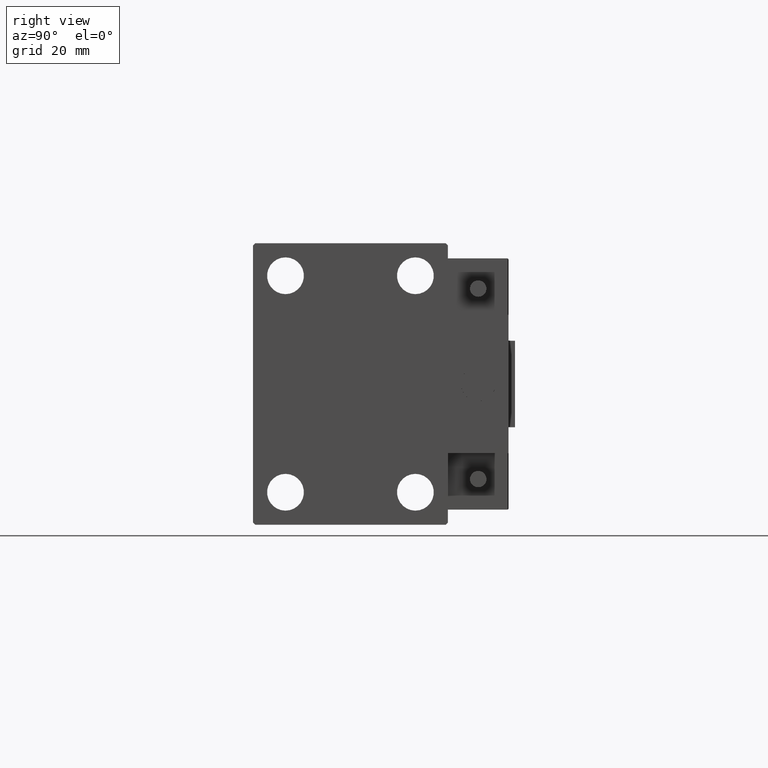
[diagram: clean part render]
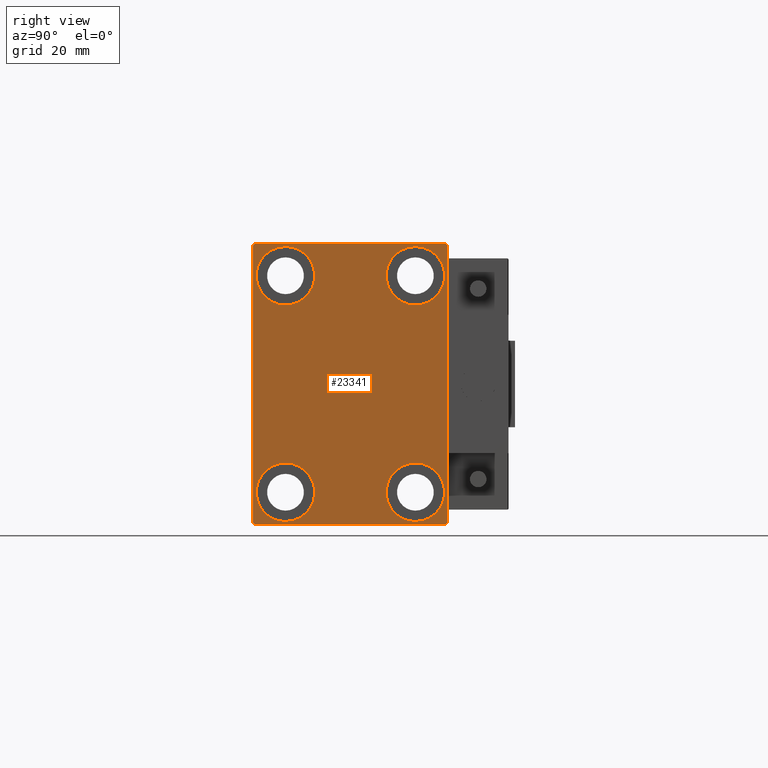
[diagram: same view with one face highlighted and labeled with its STEP entity id]
A machine part, right view. The second image highlights one B-rep face of the part: STEP entity #23341.
In plain terms, the highlighted planar face has unit normal (1, 0, 0).
Its self-contained STEP definition (entity closure, byte-faithful):
#187 = AXIS2_PLACEMENT_3D ( 'NONE', #27862, #35501, #47697 ) ;
#733 = LINE ( 'NONE', #17005, #16889 ) ;
#932 = DIRECTION ( 'NONE',  ( 0.000000000000000000, 0.000000000000000000, 1.000000000000000000 ) ) ;
#1302 = VERTEX_POINT ( 'NONE', #46746 ) ;
#1622 = VERTEX_POINT ( 'NONE', #37022 ) ;
#2235 = CARTESIAN_POINT ( 'NONE',  ( 70.00000000000000000, 14.99999999999999645, -25.00000000000000000 ) ) ;
#2263 = ORIENTED_EDGE ( 'NONE', *, *, #30473, .T. ) ;
#2297 = CARTESIAN_POINT ( 'NONE',  ( 70.00000000000000000, -15.00000000000000355, -25.00000000000000000 ) ) ;
#2438 = ORIENTED_EDGE ( 'NONE', *, *, #16235, .T. ) ;
#2470 = PLANE ( 'NONE',  #36527 ) ;
#2513 = DIRECTION ( 'NONE',  ( -0.000000000000000000, -0.7071067811865425767, 0.7071067811865525687 ) ) ;
#2712 = DIRECTION ( 'NONE',  ( -0.000000000000000000, 0.7071067811865378028, -0.7071067811865573427 ) ) ;
#2795 = DIRECTION ( 'NONE',  ( -1.000000000000000000, -0.000000000000000000, -0.000000000000000000 ) ) ;
#3069 = CARTESIAN_POINT ( 'NONE',  ( 70.00000000000000000, 15.00000000000000355, 25.00000000000000000 ) ) ;
#3163 = DIRECTION ( 'NONE',  ( 0.000000000000000000, -1.000000000000000000, -1.541976423090495387E-16 ) ) ;
#3462 = CARTESIAN_POINT ( 'NONE',  ( 70.00000000000000000, -27.25000000000032330, -27.24999999999957012 ) ) ;
#3530 = CARTESIAN_POINT ( 'NONE',  ( 70.00000000000000000, 14.99999999999999645, -18.25000000000000355 ) ) ;
#3899 = DIRECTION ( 'NONE',  ( 0.000000000000000000, -1.067522139062650425E-16, 1.000000000000000000 ) ) ;
#3998 = VECTOR ( 'NONE', #3899, 1000.000000000000000 ) ;
#4074 = CIRCLE ( 'NONE', #10547, 6.749999999999999112 ) ;
#4587 = EDGE_CURVE ( 'NONE', #8933, #34454, #5242, .T. ) ;
#4800 = VECTOR ( 'NONE', #47164, 1000.000000000000114 ) ;
#4863 = CIRCLE ( 'NONE', #28422, 6.749999999999999112 ) ;
#4996 = DIRECTION ( 'NONE',  ( -1.000000000000000000, -0.000000000000000000, -0.000000000000000000 ) ) ;
#5070 = DIRECTION ( 'NONE',  ( 0.000000000000000000, 0.000000000000000000, 1.000000000000000000 ) ) ;
#5242 = CIRCLE ( 'NONE', #23963, 6.749999999999999112 ) ;
#6461 = ORIENTED_EDGE ( 'NONE', *, *, #47674, .T. ) ;
#6534 = FACE_BOUND ( 'NONE', #34052, .T. ) ;
#6722 = LINE ( 'NONE', #37772, #3998 ) ;
#6758 = VERTEX_POINT ( 'NONE', #8471 ) ;
#8317 = CARTESIAN_POINT ( 'NONE',  ( 70.00000000000000000, 14.99999999999999645, -25.00000000000000000 ) ) ;
#8471 = CARTESIAN_POINT ( 'NONE',  ( 70.00000000000000000, -15.00000000000000355, -18.25000000000000355 ) ) ;
#8933 = VERTEX_POINT ( 'NONE', #25154 ) ;
#9765 = AXIS2_PLACEMENT_3D ( 'NONE', #2297, #2795, #41480 ) ;
#9976 = AXIS2_PLACEMENT_3D ( 'NONE', #3069, #26230, #18585 ) ;
#10115 = CARTESIAN_POINT ( 'NONE',  ( 70.00000000000000000, -22.50000000000000711, 32.49999999999999289 ) ) ;
#10122 = EDGE_LOOP ( 'NONE', ( #6461, #18109 ) ) ;
#10547 = AXIS2_PLACEMENT_3D ( 'NONE', #16517, #24169, #5070 ) ;
#11974 = CARTESIAN_POINT ( 'NONE',  ( 70.00000000000000000, 14.99999999999999645, -31.75000000000000000 ) ) ;
#13959 = LINE ( 'NONE', #17776, #38401 ) ;
#14339 = CARTESIAN_POINT ( 'NONE',  ( 70.00000000000000000, 22.00000000000001421, -32.50000000000000711 ) ) ;
#15341 = VERTEX_POINT ( 'NONE', #38101 ) ;
#15390 = LINE ( 'NONE', #10115, #39930 ) ;
#15491 = ORIENTED_EDGE ( 'NONE', *, *, #42009, .T. ) ;
#16235 = EDGE_CURVE ( 'NONE', #47713, #1622, #733, .T. ) ;
#16517 = CARTESIAN_POINT ( 'NONE',  ( 70.00000000000000000, -15.00000000000000355, -25.00000000000000000 ) ) ;
#16889 = VECTOR ( 'NONE', #24653, 1000.000000000000114 ) ;
#17005 = CARTESIAN_POINT ( 'NONE',  ( 70.00000000000000000, 27.25000000000032685, -27.24999999999957012 ) ) ;
#17103 = ORIENTED_EDGE ( 'NONE', *, *, #31423, .T. ) ;
#17210 = ORIENTED_EDGE ( 'NONE', *, *, #18499, .T. ) ;
#17394 = EDGE_LOOP ( 'NONE', ( #17103, #39260 ) ) ;
#17776 = CARTESIAN_POINT ( 'NONE',  ( 70.00000000000000000, 27.25000000000014921, 27.24999999999976907 ) ) ;
#17904 = CARTESIAN_POINT ( 'NONE',  ( 70.00000000000000000, -14.99999999999999645, 31.75000000000000000 ) ) ;
#18109 = ORIENTED_EDGE ( 'NONE', *, *, #23844, .T. ) ;
#18130 = AXIS2_PLACEMENT_3D ( 'NONE', #8317, #23855, #39384 ) ;
#18497 = VERTEX_POINT ( 'NONE', #25819 ) ;
#18499 = EDGE_CURVE ( 'NONE', #1622, #15341, #6722, .T. ) ;
#18585 = DIRECTION ( 'NONE',  ( 0.000000000000000000, 0.000000000000000000, 1.000000000000000000 ) ) ;
#18600 = EDGE_CURVE ( 'NONE', #31489, #39563, #43101, .T. ) ;
#18977 = FACE_OUTER_BOUND ( 'NONE', #19422, .T. ) ;
#19422 = EDGE_LOOP ( 'NONE', ( #30207, #24039, #42590, #15491, #44023, #2438, #17210, #2263 ) ) ;
#20729 = VERTEX_POINT ( 'NONE', #11974 ) ;
#21091 = VERTEX_POINT ( 'NONE', #25359 ) ;
#21387 = ORIENTED_EDGE ( 'NONE', *, *, #25519, .T. ) ;
#21800 = CARTESIAN_POINT ( 'NONE',  ( 70.00000000000000000, 0.000000000000000000, 0.000000000000000000 ) ) ;
#22301 = DIRECTION ( 'NONE',  ( 0.000000000000000000, 0.000000000000000000, -1.000000000000000000 ) ) ;
#23021 = DIRECTION ( 'NONE',  ( 0.000000000000000000, 0.000000000000000000, -1.000000000000000000 ) ) ;
#23341 = ADVANCED_FACE ( 'NONE', ( #45480, #33532, #6534, #34282, #18977 ), #2470, .T. ) ;
#23401 = CARTESIAN_POINT ( 'NONE',  ( 70.00000000000000000, -22.00000000000002132, -32.50000000000000711 ) ) ;
#23844 = EDGE_CURVE ( 'NONE', #23994, #21091, #4863, .T. ) ;
#23855 = DIRECTION ( 'NONE',  ( -1.000000000000000000, -0.000000000000000000, -0.000000000000000000 ) ) ;
#23942 = ORIENTED_EDGE ( 'NONE', *, *, #38892, .T. ) ;
#23963 = AXIS2_PLACEMENT_3D ( 'NONE', #37343, #44995, #28972 ) ;
#23994 = VERTEX_POINT ( 'NONE', #17904 ) ;
#24039 = ORIENTED_EDGE ( 'NONE', *, *, #18600, .T. ) ;
#24169 = DIRECTION ( 'NONE',  ( -1.000000000000000000, -0.000000000000000000, -0.000000000000000000 ) ) ;
#24653 = DIRECTION ( 'NONE',  ( -0.000000000000000000, 0.7071067811865376918, 0.7071067811865573427 ) ) ;
#25154 = CARTESIAN_POINT ( 'NONE',  ( 70.00000000000000000, 15.00000000000000355, 18.25000000000000355 ) ) ;
#25359 = CARTESIAN_POINT ( 'NONE',  ( 70.00000000000000000, -14.99999999999999645, 18.25000000000000355 ) ) ;
#25446 = CIRCLE ( 'NONE', #18130, 6.749999999999999112 ) ;
#25519 = EDGE_CURVE ( 'NONE', #1302, #6758, #4074, .T. ) ;
#25819 = CARTESIAN_POINT ( 'NONE',  ( 70.00000000000000000, 21.99999999999999289, 32.50000000000000000 ) ) ;
#26230 = DIRECTION ( 'NONE',  ( -1.000000000000000000, -0.000000000000000000, -0.000000000000000000 ) ) ;
#26582 = CARTESIAN_POINT ( 'NONE',  ( 70.00000000000000000, 22.49999999999999289, 32.50000000000000000 ) ) ;
#27047 = EDGE_CURVE ( 'NONE', #39563, #44958, #15390, .T. ) ;
#27072 = CARTESIAN_POINT ( 'NONE',  ( 70.00000000000000000, -27.25000000000000000, 27.25000000000000000 ) ) ;
#27862 = CARTESIAN_POINT ( 'NONE',  ( 70.00000000000000000, -14.99999999999999645, 25.00000000000000000 ) ) ;
#28422 = AXIS2_PLACEMENT_3D ( 'NONE', #43948, #4996, #932 ) ;
#28972 = DIRECTION ( 'NONE',  ( 0.000000000000000000, 0.000000000000000000, 1.000000000000000000 ) ) ;
#29420 = LINE ( 'NONE', #32985, #34002 ) ;
#30207 = ORIENTED_EDGE ( 'NONE', *, *, #46667, .T. ) ;
#30291 = CARTESIAN_POINT ( 'NONE',  ( 70.00000000000000000, -22.50000000000000711, 31.99999999999999289 ) ) ;
#30473 = EDGE_CURVE ( 'NONE', #15341, #18497, #13959, .T. ) ;
#31423 = EDGE_CURVE ( 'NONE', #20729, #44941, #25446, .T. ) ;
#31489 = VERTEX_POINT ( 'NONE', #36580 ) ;
#32985 = CARTESIAN_POINT ( 'NONE',  ( 70.00000000000000000, -22.50000000000000711, -32.50000000000000711 ) ) ;
#33217 = ORIENTED_EDGE ( 'NONE', *, *, #48209, .T. ) ;
#33532 = FACE_BOUND ( 'NONE', #10122, .T. ) ;
#33613 = EDGE_CURVE ( 'NONE', #47248, #47713, #29420, .T. ) ;
#33775 = EDGE_LOOP ( 'NONE', ( #21387, #23942 ) ) ;
#34002 = VECTOR ( 'NONE', #36797, 1000.000000000000000 ) ;
#34052 = EDGE_LOOP ( 'NONE', ( #47406, #33217 ) ) ;
#34282 = FACE_BOUND ( 'NONE', #33775, .T. ) ;
#34454 = VERTEX_POINT ( 'NONE', #41124 ) ;
#34521 = LINE ( 'NONE', #3462, #34980 ) ;
#34599 = CARTESIAN_POINT ( 'NONE',  ( 70.00000000000000000, -22.50000000000000711, -32.00000000000000711 ) ) ;
#34980 = VECTOR ( 'NONE', #2712, 1000.000000000000000 ) ;
#35501 = DIRECTION ( 'NONE',  ( -1.000000000000000000, -0.000000000000000000, -0.000000000000000000 ) ) ;
#36527 = AXIS2_PLACEMENT_3D ( 'NONE', #21800, #41907, #22301 ) ;
#36580 = CARTESIAN_POINT ( 'NONE',  ( 70.00000000000000000, -21.99999999999999289, 32.49999999999999289 ) ) ;
#36787 = CIRCLE ( 'NONE', #187, 6.749999999999999112 ) ;
#36797 = DIRECTION ( 'NONE',  ( 0.000000000000000000, 1.000000000000000000, 0.000000000000000000 ) ) ;
#37022 = CARTESIAN_POINT ( 'NONE',  ( 70.00000000000000000, 22.50000000000000000, -32.00000000000002132 ) ) ;
#37343 = CARTESIAN_POINT ( 'NONE',  ( 70.00000000000000000, 15.00000000000000355, 25.00000000000000000 ) ) ;
#37411 = CIRCLE ( 'NONE', #9765, 6.749999999999999112 ) ;
#37541 = VECTOR ( 'NONE', #3163, 1000.000000000000000 ) ;
#37772 = CARTESIAN_POINT ( 'NONE',  ( 70.00000000000000000, 22.50000000000000000, -32.50000000000000711 ) ) ;
#38101 = CARTESIAN_POINT ( 'NONE',  ( 70.00000000000000000, 22.49999999999999289, 31.99999999999999289 ) ) ;
#38401 = VECTOR ( 'NONE', #2513, 999.9999999999998863 ) ;
#38892 = EDGE_CURVE ( 'NONE', #6758, #1302, #37411, .T. ) ;
#39260 = ORIENTED_EDGE ( 'NONE', *, *, #46312, .T. ) ;
#39384 = DIRECTION ( 'NONE',  ( 0.000000000000000000, 0.000000000000000000, 1.000000000000000000 ) ) ;
#39563 = VERTEX_POINT ( 'NONE', #30291 ) ;
#39930 = VECTOR ( 'NONE', #23021, 1000.000000000000000 ) ;
#41124 = CARTESIAN_POINT ( 'NONE',  ( 70.00000000000000000, 15.00000000000000355, 31.75000000000000000 ) ) ;
#41480 = DIRECTION ( 'NONE',  ( 0.000000000000000000, 0.000000000000000000, 1.000000000000000000 ) ) ;
#41907 = DIRECTION ( 'NONE',  ( 1.000000000000000000, 0.000000000000000000, 0.000000000000000000 ) ) ;
#42009 = EDGE_CURVE ( 'NONE', #44958, #47248, #34521, .T. ) ;
#42590 = ORIENTED_EDGE ( 'NONE', *, *, #27047, .T. ) ;
#43101 = LINE ( 'NONE', #27072, #4800 ) ;
#43948 = CARTESIAN_POINT ( 'NONE',  ( 70.00000000000000000, -14.99999999999999645, 25.00000000000000000 ) ) ;
#44023 = ORIENTED_EDGE ( 'NONE', *, *, #33613, .T. ) ;
#44868 = AXIS2_PLACEMENT_3D ( 'NONE', #2235, #48562, #45002 ) ;
#44941 = VERTEX_POINT ( 'NONE', #3530 ) ;
#44958 = VERTEX_POINT ( 'NONE', #34599 ) ;
#44995 = DIRECTION ( 'NONE',  ( -1.000000000000000000, -0.000000000000000000, -0.000000000000000000 ) ) ;
#45002 = DIRECTION ( 'NONE',  ( 0.000000000000000000, 0.000000000000000000, 1.000000000000000000 ) ) ;
#45480 = FACE_BOUND ( 'NONE', #17394, .T. ) ;
#46312 = EDGE_CURVE ( 'NONE', #44941, #20729, #48123, .T. ) ;
#46424 = LINE ( 'NONE', #26582, #37541 ) ;
#46667 = EDGE_CURVE ( 'NONE', #18497, #31489, #46424, .T. ) ;
#46746 = CARTESIAN_POINT ( 'NONE',  ( 70.00000000000000000, -15.00000000000000355, -31.75000000000000000 ) ) ;
#47164 = DIRECTION ( 'NONE',  ( 0.000000000000000000, -0.7071067811865474617, -0.7071067811865474617 ) ) ;
#47248 = VERTEX_POINT ( 'NONE', #23401 ) ;
#47406 = ORIENTED_EDGE ( 'NONE', *, *, #4587, .T. ) ;
#47674 = EDGE_CURVE ( 'NONE', #21091, #23994, #36787, .T. ) ;
#47697 = DIRECTION ( 'NONE',  ( 0.000000000000000000, 0.000000000000000000, 1.000000000000000000 ) ) ;
#47713 = VERTEX_POINT ( 'NONE', #14339 ) ;
#48123 = CIRCLE ( 'NONE', #44868, 6.749999999999999112 ) ;
#48209 = EDGE_CURVE ( 'NONE', #34454, #8933, #48999, .T. ) ;
#48562 = DIRECTION ( 'NONE',  ( -1.000000000000000000, -0.000000000000000000, -0.000000000000000000 ) ) ;
#48999 = CIRCLE ( 'NONE', #9976, 6.749999999999999112 ) ;